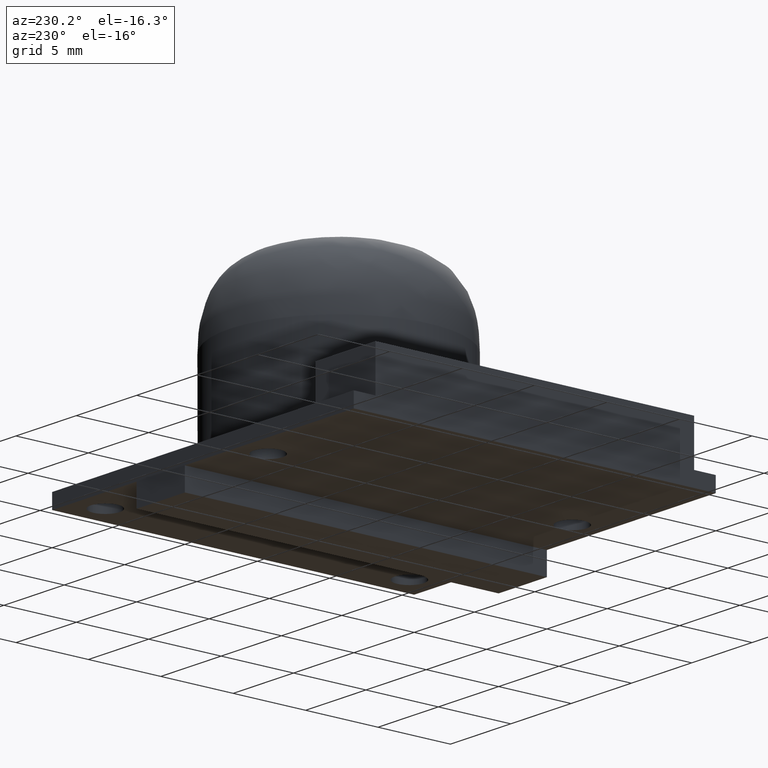
[diagram: clean part render]
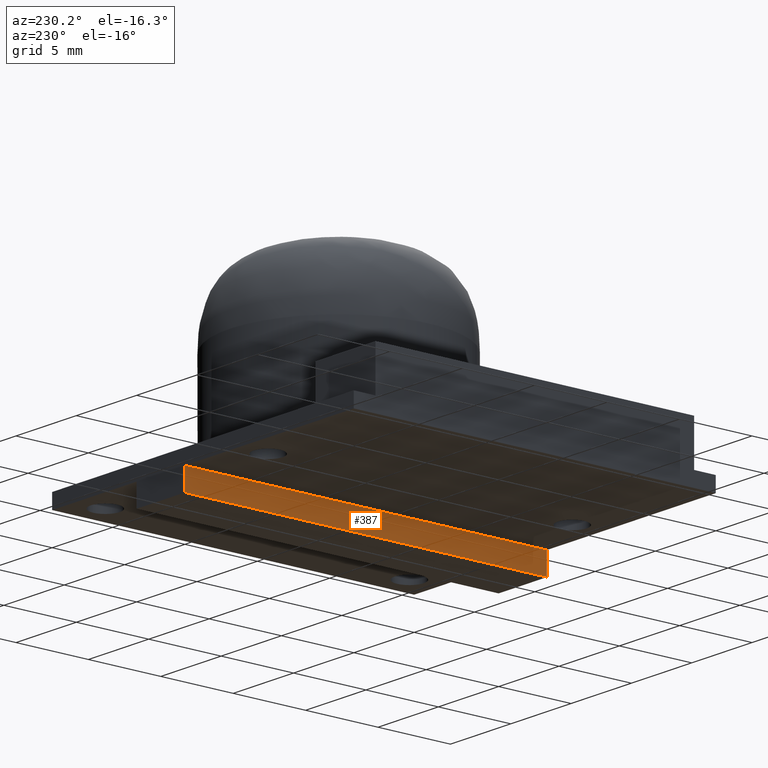
[diagram: same view with one face highlighted and labeled with its STEP entity id]
A machine part, auxiliary view. The second image highlights one B-rep face of the part: STEP entity #387.
In plain terms, the highlighted planar face has unit normal (-1, 0, 0).
Its self-contained STEP definition (entity closure, byte-faithful):
#34=LINE('',#702,#75);
#35=LINE('',#704,#76);
#36=LINE('',#706,#77);
#37=LINE('',#707,#78);
#75=VECTOR('',#459,10.);
#76=VECTOR('',#460,10.);
#77=VECTOR('',#461,10.);
#78=VECTOR('',#462,10.);
#121=PLANE('',#422);
#138=FACE_OUTER_BOUND('',#159,.T.);
#159=EDGE_LOOP('',(#286,#287,#288,#289));
#192=VERTEX_POINT('',#700);
#193=VERTEX_POINT('',#701);
#194=VERTEX_POINT('',#703);
#195=VERTEX_POINT('',#705);
#229=EDGE_CURVE('',#192,#193,#34,.T.);
#230=EDGE_CURVE('',#194,#193,#35,.T.);
#231=EDGE_CURVE('',#194,#195,#36,.T.);
#232=EDGE_CURVE('',#192,#195,#37,.T.);
#286=ORIENTED_EDGE('',*,*,#229,.T.);
#287=ORIENTED_EDGE('',*,*,#230,.F.);
#288=ORIENTED_EDGE('',*,*,#231,.T.);
#289=ORIENTED_EDGE('',*,*,#232,.F.);
#387=ADVANCED_FACE('',(#138),#121,.T.);
#422=AXIS2_PLACEMENT_3D('',#699,#457,#458);
#457=DIRECTION('center_axis',(-1.,0.,7.40148683083438E-16));
#458=DIRECTION('ref_axis',(7.40148683083438E-16,0.,1.));
#459=DIRECTION('',(-7.40148683083438E-16,0.,-1.));
#460=DIRECTION('',(0.,1.,0.));
#461=DIRECTION('',(7.40148683083438E-16,0.,1.));
#462=DIRECTION('',(0.,-1.,0.));
#699=CARTESIAN_POINT('Origin',(14.0000000000016,0.,-1.5));
#700=CARTESIAN_POINT('',(14.0000000000016,25.,0.));
#701=CARTESIAN_POINT('',(14.0000000000016,25.,-1.5));
#702=CARTESIAN_POINT('',(14.0000000000016,25.,-1.125));
#703=CARTESIAN_POINT('',(14.0000000000016,0.,-1.5));
#704=CARTESIAN_POINT('',(14.0000000000016,0.,-1.5));
#705=CARTESIAN_POINT('',(14.0000000000016,0.,0.));
#706=CARTESIAN_POINT('',(14.0000000000016,0.,-1.5));
#707=CARTESIAN_POINT('',(14.0000000000016,6.25,0.));